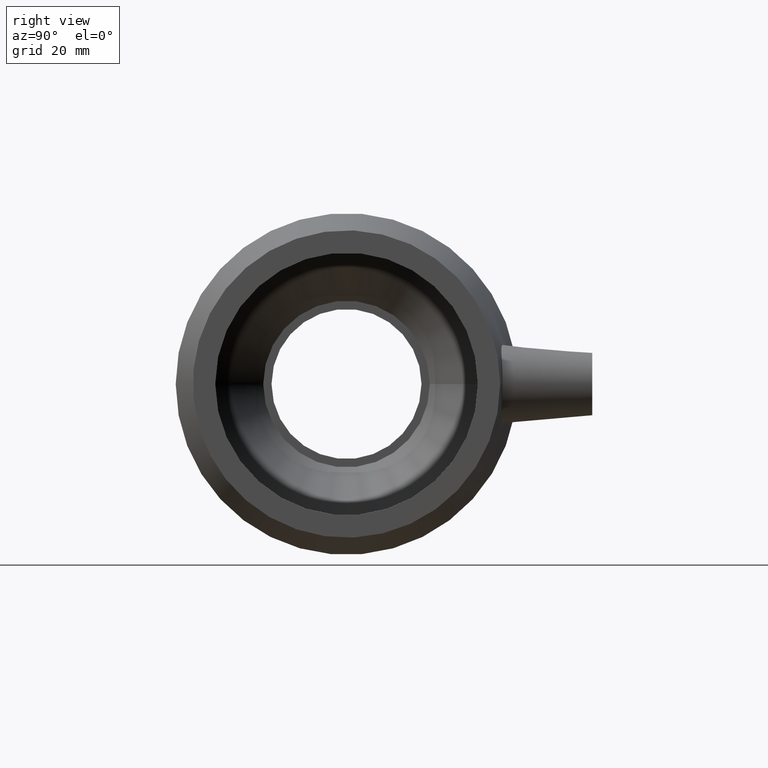
[diagram: clean part render]
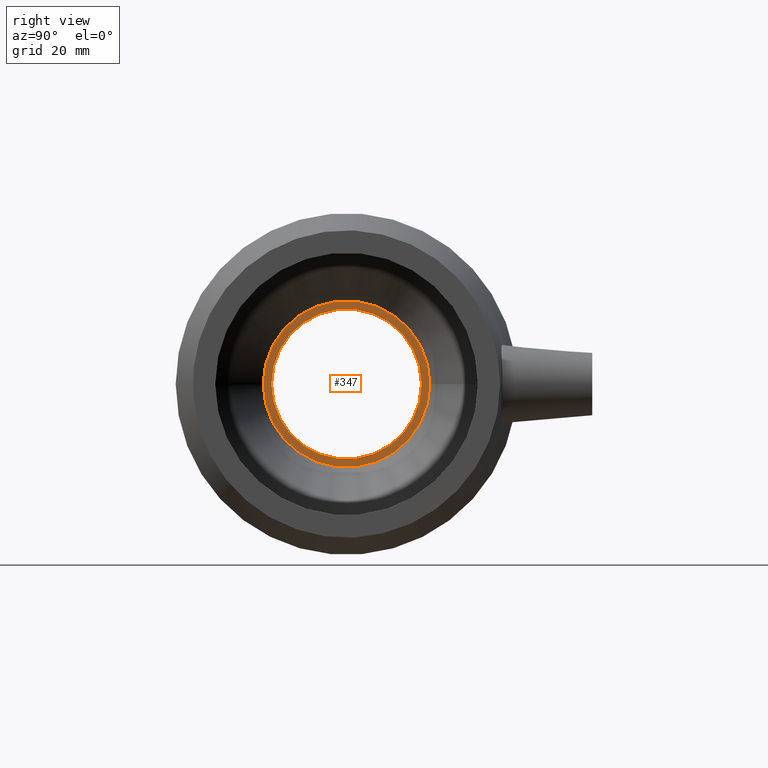
[diagram: same view with one face highlighted and labeled with its STEP entity id]
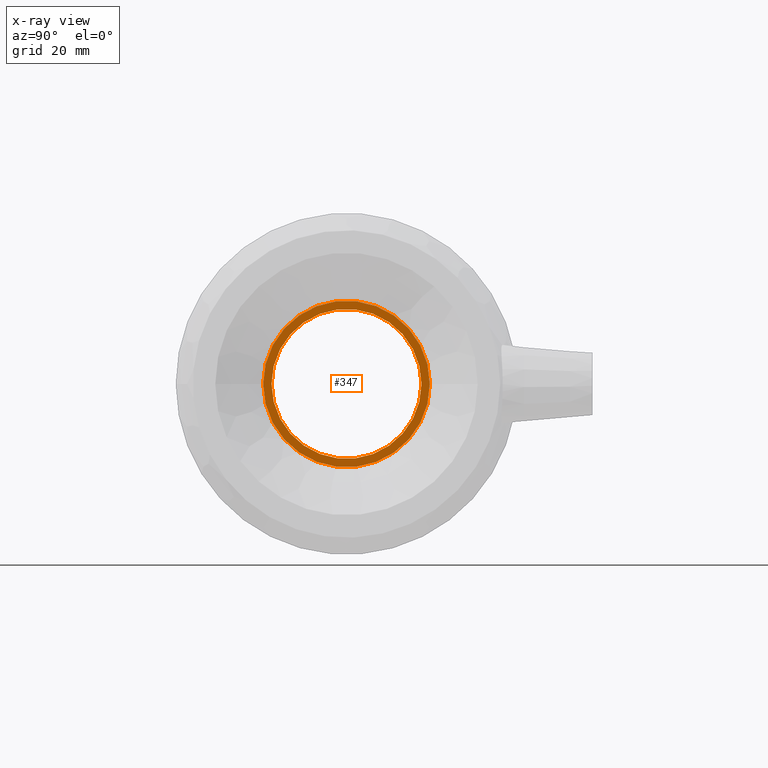
[diagram: x-ray of the same camera — body ghosted, the highlighted face saturated]
A machine part, right view. The second image highlights one B-rep face of the part: STEP entity #347.
The next image is the same camera in x-ray: the body ghosted, the highlighted face saturated — about 0% of this face is hidden behind the body in this view.
In plain terms, the highlighted planar face has unit normal (1, 0, 0).
Its self-contained STEP definition (entity closure, byte-faithful):
#46=FACE_BOUND('',#142,.T.);
#89=FACE_OUTER_BOUND('',#141,.T.);
#141=EDGE_LOOP('',(#294));
#142=EDGE_LOOP('',(#295));
#180=CIRCLE('',#400,20.);
#181=CIRCLE('',#402,18.);
#211=VERTEX_POINT('',#673);
#212=VERTEX_POINT('',#676);
#242=EDGE_CURVE('',#211,#211,#180,.T.);
#243=EDGE_CURVE('',#212,#212,#181,.T.);
#294=ORIENTED_EDGE('',*,*,#242,.T.);
#295=ORIENTED_EDGE('',*,*,#243,.F.);
#321=PLANE('',#401);
#347=ADVANCED_FACE('',(#89,#46),#321,.T.);
#400=AXIS2_PLACEMENT_3D('',#674,#504,#505);
#401=AXIS2_PLACEMENT_3D('',#675,#506,#507);
#402=AXIS2_PLACEMENT_3D('',#677,#508,#509);
#504=DIRECTION('center_axis',(1.,1.83697019872103E-16,0.));
#505=DIRECTION('ref_axis',(0.,0.,-1.));
#506=DIRECTION('center_axis',(1.,1.83697019872103E-16,0.));
#507=DIRECTION('ref_axis',(0.,0.,-1.));
#508=DIRECTION('center_axis',(1.,1.83697019872103E-16,0.));
#509=DIRECTION('ref_axis',(0.,0.,-1.));
#673=CARTESIAN_POINT('',(-13.3,20.,0.));
#674=CARTESIAN_POINT('Origin',(-13.3,8.48680231809116E-15,0.));
#675=CARTESIAN_POINT('Origin',(-13.3,18.,0.));
#676=CARTESIAN_POINT('',(-13.3,18.,0.));
#677=CARTESIAN_POINT('Origin',(-13.3,8.48680231809116E-15,0.));